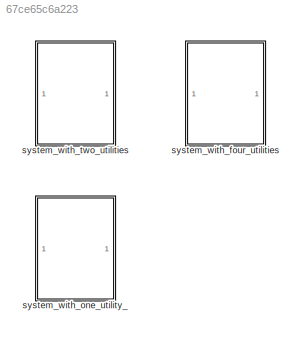
MODEL slx_67ce65c6a223
KIND model
CONFIG AbsTol = auto
CONFIG EnableMultiTasking = off
CONFIG FixedStep = auto
CONFIG MaxStep = tc
CONFIG MinStep = auto
CONFIG RelTol = 1e-3
CONFIG SampleTimeConstraint = Unconstrained
CONFIG SolverName = ode23tb
CONFIG StartTime = 0.0
CONFIG StopTime = 10.0
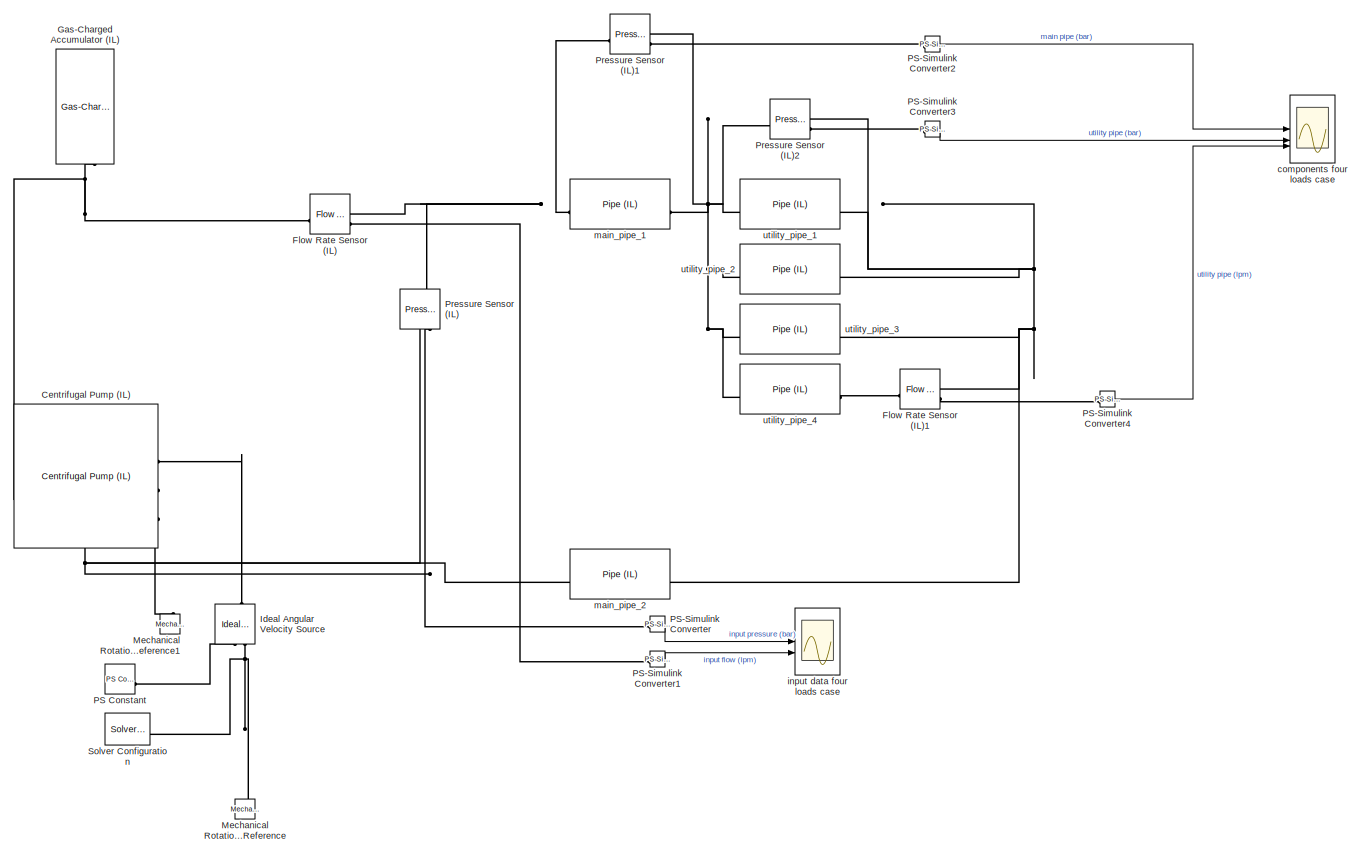
[diagram: system_with_four_utilities - part 1/1, most of the canvas]
BLOCK [SubSystem] system_with_four_utilities
BLOCK [Reference] system_with_four_utilities/Centrifugal Pump (IL)  REF=SimscapeFluids_lib/Isothermal Liquid/Pumps & Motors/Centrifugal Pump
(IL)
  NameLocation = left
  SourceBlock = SimscapeFluids_lib/Isothermal Liquid/Pumps & Motors/Centrifugal Pump\n(IL)
  SourceType = Centrifugal Pump\n(IL)
BLOCK [Reference] system_with_four_utilities/Flow Rate Sensor (IL)  REF=fl_lib/Isothermal Liquid/Sensors/Flow Rate Sensor
(IL)
  SourceBlock = fl_lib/Isothermal Liquid/Sensors/Flow Rate Sensor\n(IL)
  SourceType = Flow Rate Sensor\n(IL)
BLOCK [Reference] system_with_four_utilities/Flow Rate Sensor (IL)1  REF=fl_lib/Isothermal Liquid/Sensors/Flow Rate Sensor
(IL)
  SourceBlock = fl_lib/Isothermal Liquid/Sensors/Flow Rate Sensor\n(IL)
  SourceType = Flow Rate Sensor\n(IL)
BLOCK [Reference] system_with_four_utilities/Gas-Charged Accumulator (IL)  REF=SimscapeFluids_lib/Isothermal Liquid/Tanks & Accumulators/Gas-Charged
Accumulator (IL)
  NameLocation = right
  SourceBlock = SimscapeFluids_lib/Isothermal Liquid/Tanks & Accumulators/Gas-Charged\nAccumulator (IL)
  SourceType = Gas-Charged\nAccumulator (IL)
BLOCK [Reference] system_with_four_utilities/Ideal Angular Velocity Source  REF=fl_lib/Mechanical/Mechanical Sources/Ideal Angular
Velocity Source
  NameLocation = right
  SourceBlock = fl_lib/Mechanical/Mechanical Sources/Ideal Angular\nVelocity Source
  SourceType = Ideal Angular\nVelocity Source
BLOCK [Reference] system_with_four_utilities/Mechanical Rotational Reference  REF=fl_lib/Mechanical/Rotational Elements/Mechanical
Rotational Reference
  NameLocation = right
  SourceBlock = fl_lib/Mechanical/Rotational Elements/Mechanical\nRotational Reference
  SourceType = Mechanical\nRotational Reference
BLOCK [Reference] system_with_four_utilities/Mechanical Rotational Reference1  REF=fl_lib/Mechanical/Rotational Elements/Mechanical
Rotational Reference
  NameLocation = right
  SourceBlock = fl_lib/Mechanical/Rotational Elements/Mechanical\nRotational Reference
  SourceType = Mechanical\nRotational Reference
BLOCK [Reference] system_with_four_utilities/PS Constant  REF=fl_lib/Physical Signals/Sources/PS Constant
  SourceBlock = fl_lib/Physical Signals/Sources/PS Constant
  SourceType = PS Constant
BLOCK [Reference] system_with_four_utilities/PS-Simulink Converter  REF=nesl_utility/PS-Simulink
Converter
  SourceBlock = nesl_utility/PS-Simulink\nConverter
  SourceType = PS-Simulink\nConverter
BLOCK [Reference] system_with_four_utilities/PS-Simulink Converter1  REF=nesl_utility/PS-Simulink
Converter
  SourceBlock = nesl_utility/PS-Simulink\nConverter
  SourceType = PS-Simulink\nConverter
BLOCK [Reference] system_with_four_utilities/PS-Simulink Converter2  REF=nesl_utility/PS-Simulink
Converter
  SourceBlock = nesl_utility/PS-Simulink\nConverter
  SourceType = PS-Simulink\nConverter
BLOCK [Reference] system_with_four_utilities/PS-Simulink Converter3  REF=nesl_utility/PS-Simulink
Converter
  SourceBlock = nesl_utility/PS-Simulink\nConverter
  SourceType = PS-Simulink\nConverter
BLOCK [Reference] system_with_four_utilities/PS-Simulink Converter4  REF=nesl_utility/PS-Simulink
Converter
  SourceBlock = nesl_utility/PS-Simulink\nConverter
  SourceType = PS-Simulink\nConverter
BLOCK [Reference] system_with_four_utilities/Pressure Sensor (IL)  REF=fl_lib/Isothermal Liquid/Sensors/Pressure Sensor (IL)
  NameLocation = left
  SourceBlock = fl_lib/Isothermal Liquid/Sensors/Pressure Sensor (IL)
  SourceType = Pressure Sensor (IL)
BLOCK [Reference] system_with_four_utilities/Pressure Sensor (IL)1  REF=fl_lib/Isothermal Liquid/Sensors/Pressure Sensor (IL)
  SourceBlock = fl_lib/Isothermal Liquid/Sensors/Pressure Sensor (IL)
  SourceType = Pressure Sensor (IL)
BLOCK [Reference] system_with_four_utilities/Pressure Sensor (IL)2  REF=fl_lib/Isothermal Liquid/Sensors/Pressure Sensor (IL)
  SourceBlock = fl_lib/Isothermal Liquid/Sensors/Pressure Sensor (IL)
  SourceType = Pressure Sensor (IL)
BLOCK [Reference] system_with_four_utilities/Solver Configuration  REF=nesl_utility/Solver
Configuration
  SourceBlock = nesl_utility/Solver\nConfiguration
  SourceType = Solver\nConfiguration
BLOCK [Scope] system_with_four_utilities/components four loads case
  ActiveDisplayString = 2
  ActiveDisplayYMaximum = 2.8461616774672711
  ActiveDisplayYMinimum = 0.84616167746727089
  DataLoggingDecimation = 1
  DataLoggingLimitDataPoints = on
  DataLoggingSaveFormat = Array
  Floating = off
  GraphicalSettings = {"Style":{"BackgroundColor":[0.12941176470588237,0.12941176470588237,0.12941176470588237],"AxesColor":[0.07058823529411765,0.07058823529411765,0.07058823529411765],"LabelsColor":[0.8509803921568627,0.8509803921568627,0.8509803921568627],"PreserveColors":false,"Visible":[true,true,true],"LineStyle":["-","-","-"],"LineWidth":[1.5,1.5,1.5],"BarWidth":[0.9,0.9,0.9],"LineColor":["auto","auto","auto"],"...<+2977ch>  <repeated x3 — deduplicated; at blocks: components four loads case, components data two loads case>
  LayoutDimensionsString = [3,1]
  MultipleDisplayCache = [{"MaxYLimMag":0.37036280909614694,"MaxYLimReal":0.37036280909614694,"MinYLimMag":0.1703628090961469,"MinYLimReal":0.1703628090961469,"PlotAsMagnitudePhase":false,"ShowGrid":true,"ShowLegend":true,"Title":"%<SignalLabel>","YLabel":""},{"MaxYLimMag":2.8461616774672711,"MaxYLimReal":2.8461616774672711,"MinYLimMag":0.84616167746727089,"MinYLimReal":0.84616167746727089,"PlotAsMagnitudePhase":false,"Sh...<+301ch>
  NumInputPorts = 3
  ScopeFrameLocation = window
  ShowLegend = on
  WasSavedAsWebScope = on
  WindowPosition = [1257.000000,86.000000,632.000000,618.000000,]
BLOCK [Scope] system_with_four_utilities/input data four loads case
  ActiveDisplayString = 2
  ActiveDisplayYMaximum = 202.62030358776565
  ActiveDisplayYMinimum = 2.6203035877656617
  DataLoggingDecimation = 1
  DataLoggingLimitDataPoints = on
  DataLoggingSaveFormat = Array
  DataLoggingVariableName = ScopeData2
  Floating = off
  GraphicalSettings = {"Style":{"BackgroundColor":[0.12941176470588237,0.12941176470588237,0.12941176470588237],"AxesColor":[0.07058823529411765,0.07058823529411765,0.07058823529411765],"LabelsColor":[0.8509803921568627,0.8509803921568627,0.8509803921568627],"PreserveColors":false,"Visible":[true,true],"LineStyle":["-","-"],"LineWidth":[1.5,1.5],"BarWidth":[0.9,0.9],"LineColor":["auto","auto"],"LineFaceAlpha":[1,1],"Li...<+2519ch>
  LayoutDimensionsString = [2,1]
  MultipleDisplayCache = [{"MaxYLimMag":3.3869624665461786,"MaxYLimReal":3.3869624665461786,"MinYLimMag":1.3869624665461786,"MinYLimReal":1.3869624665461786,"PlotAsMagnitudePhase":false,"ShowGrid":true,"ShowLegend":true,"Title":"%<SignalLabel>","YLabel":""},{"MaxYLimMag":202.62030358776565,"MaxYLimReal":202.62030358776565,"MinYLimMag":2.6203035877656617,"MinYLimReal":2.6203035877656617,"PlotAsMagnitudePhase":false,"ShowGr...<+65ch>
  NumInputPorts = 2
  ScopeFrameLocation = window
  ShowLegend = on
  WasSavedAsWebScope = on
  WindowPosition = [1091.000000,228.000000,632.000000,618.000000,]
BLOCK [Reference] system_with_four_utilities/main_pipe_1  REF=SimscapeFluids_lib/Isothermal Liquid/Pipes & Fittings/Pipe (IL)
  SourceBlock = SimscapeFluids_lib/Isothermal Liquid/Pipes & Fittings/Pipe (IL)
  SourceType = Pipe (IL)
BLOCK [Reference] system_with_four_utilities/main_pipe_2  REF=SimscapeFluids_lib/Isothermal Liquid/Pipes & Fittings/Pipe (IL)
  SourceBlock = SimscapeFluids_lib/Isothermal Liquid/Pipes & Fittings/Pipe (IL)
  SourceType = Pipe (IL)
BLOCK [Reference] system_with_four_utilities/utility_pipe_1  REF=SimscapeFluids_lib/Isothermal Liquid/Pipes & Fittings/Pipe (IL)
  SourceBlock = SimscapeFluids_lib/Isothermal Liquid/Pipes & Fittings/Pipe (IL)
  SourceType = Pipe (IL)
BLOCK [Reference] system_with_four_utilities/utility_pipe_2  REF=SimscapeFluids_lib/Isothermal Liquid/Pipes & Fittings/Pipe (IL)
  SourceBlock = SimscapeFluids_lib/Isothermal Liquid/Pipes & Fittings/Pipe (IL)
  SourceType = Pipe (IL)
BLOCK [Reference] system_with_four_utilities/utility_pipe_3  REF=SimscapeFluids_lib/Isothermal Liquid/Pipes & Fittings/Pipe (IL)
  SourceBlock = SimscapeFluids_lib/Isothermal Liquid/Pipes & Fittings/Pipe (IL)
  SourceType = Pipe (IL)
BLOCK [Reference] system_with_four_utilities/utility_pipe_4  REF=SimscapeFluids_lib/Isothermal Liquid/Pipes & Fittings/Pipe (IL)
  SourceBlock = SimscapeFluids_lib/Isothermal Liquid/Pipes & Fittings/Pipe (IL)
  SourceType = Pipe (IL)
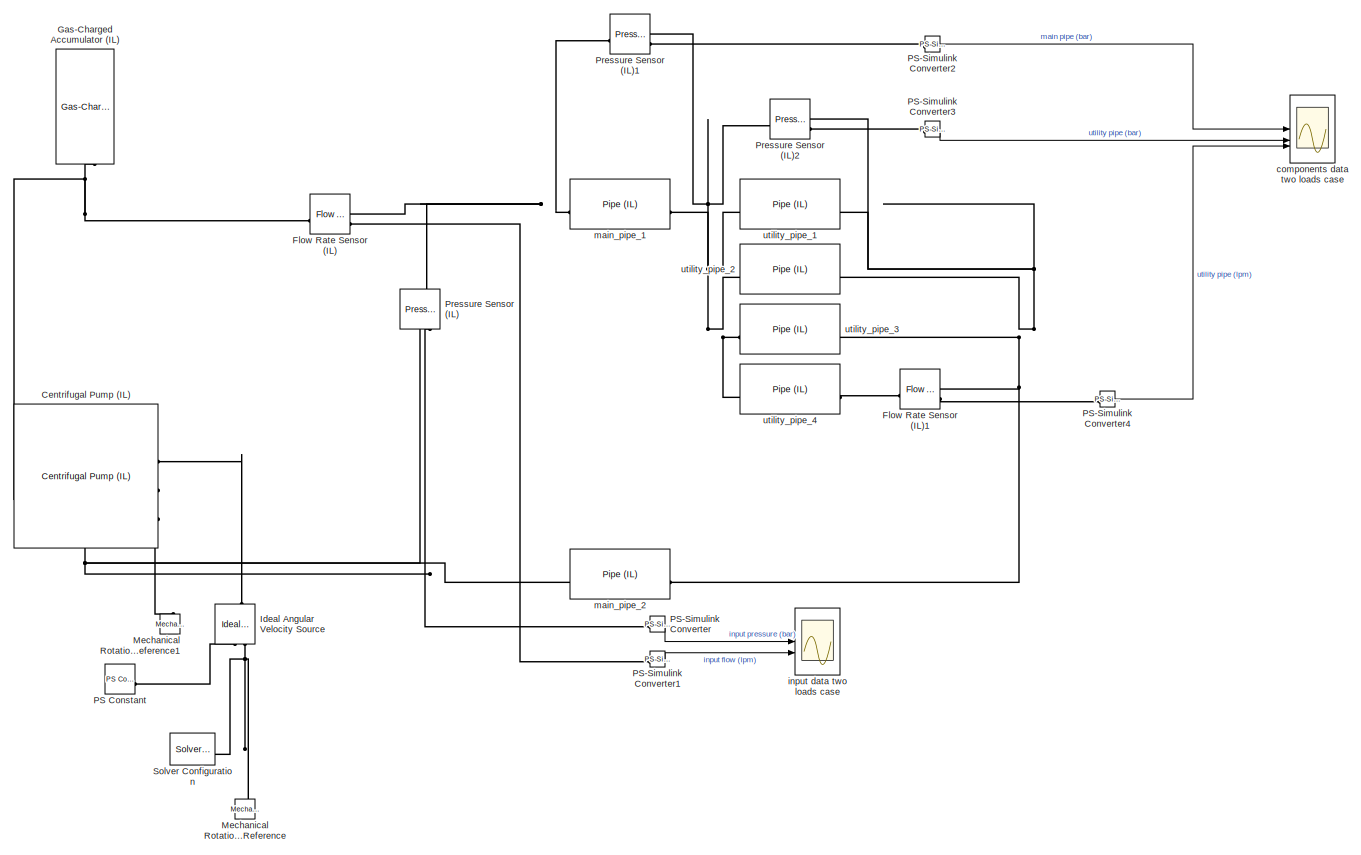
[diagram: system_with_one_utility_ - part 1/1, most of the canvas]
BLOCK [SubSystem] system_with_one_utility_
BLOCK [Reference] system_with_one_utility_/Centrifugal Pump (IL)  REF=SimscapeFluids_lib/Isothermal Liquid/Pumps & Motors/Centrifugal Pump
(IL)
  NameLocation = left
  SourceBlock = SimscapeFluids_lib/Isothermal Liquid/Pumps & Motors/Centrifugal Pump\n(IL)
  SourceType = Centrifugal Pump\n(IL)
BLOCK [Reference] system_with_one_utility_/Flow Rate Sensor (IL)  REF=fl_lib/Isothermal Liquid/Sensors/Flow Rate Sensor
(IL)
  SourceBlock = fl_lib/Isothermal Liquid/Sensors/Flow Rate Sensor\n(IL)
  SourceType = Flow Rate Sensor\n(IL)
BLOCK [Reference] system_with_one_utility_/Flow Rate Sensor (IL)1  REF=fl_lib/Isothermal Liquid/Sensors/Flow Rate Sensor
(IL)
  SourceBlock = fl_lib/Isothermal Liquid/Sensors/Flow Rate Sensor\n(IL)
  SourceType = Flow Rate Sensor\n(IL)
BLOCK [Reference] system_with_one_utility_/Gas-Charged Accumulator (IL)  REF=SimscapeFluids_lib/Isothermal Liquid/Tanks & Accumulators/Gas-Charged
Accumulator (IL)
  NameLocation = right
  SourceBlock = SimscapeFluids_lib/Isothermal Liquid/Tanks & Accumulators/Gas-Charged\nAccumulator (IL)
  SourceType = Gas-Charged\nAccumulator (IL)
BLOCK [Reference] system_with_one_utility_/Ideal Angular Velocity Source  REF=fl_lib/Mechanical/Mechanical Sources/Ideal Angular
Velocity Source
  NameLocation = right
  SourceBlock = fl_lib/Mechanical/Mechanical Sources/Ideal Angular\nVelocity Source
  SourceType = Ideal Angular\nVelocity Source
BLOCK [Reference] system_with_one_utility_/Mechanical Rotational Reference  REF=fl_lib/Mechanical/Rotational Elements/Mechanical
Rotational Reference
  NameLocation = right
  SourceBlock = fl_lib/Mechanical/Rotational Elements/Mechanical\nRotational Reference
  SourceType = Mechanical\nRotational Reference
BLOCK [Reference] system_with_one_utility_/Mechanical Rotational Reference1  REF=fl_lib/Mechanical/Rotational Elements/Mechanical
Rotational Reference
  NameLocation = right
  SourceBlock = fl_lib/Mechanical/Rotational Elements/Mechanical\nRotational Reference
  SourceType = Mechanical\nRotational Reference
BLOCK [Reference] system_with_one_utility_/PS Constant  REF=fl_lib/Physical Signals/Sources/PS Constant
  SourceBlock = fl_lib/Physical Signals/Sources/PS Constant
  SourceType = PS Constant
BLOCK [Reference] system_with_one_utility_/PS-Simulink Converter  REF=nesl_utility/PS-Simulink
Converter
  SourceBlock = nesl_utility/PS-Simulink\nConverter
  SourceType = PS-Simulink\nConverter
BLOCK [Reference] system_with_one_utility_/PS-Simulink Converter1  REF=nesl_utility/PS-Simulink
Converter
  SourceBlock = nesl_utility/PS-Simulink\nConverter
  SourceType = PS-Simulink\nConverter
BLOCK [Reference] system_with_one_utility_/PS-Simulink Converter2  REF=nesl_utility/PS-Simulink
Converter
  SourceBlock = nesl_utility/PS-Simulink\nConverter
  SourceType = PS-Simulink\nConverter
BLOCK [Reference] system_with_one_utility_/PS-Simulink Converter3  REF=nesl_utility/PS-Simulink
Converter
  SourceBlock = nesl_utility/PS-Simulink\nConverter
  SourceType = PS-Simulink\nConverter
BLOCK [Reference] system_with_one_utility_/PS-Simulink Converter4  REF=nesl_utility/PS-Simulink
Converter
  SourceBlock = nesl_utility/PS-Simulink\nConverter
  SourceType = PS-Simulink\nConverter
BLOCK [Reference] system_with_one_utility_/Pressure Sensor (IL)  REF=fl_lib/Isothermal Liquid/Sensors/Pressure Sensor (IL)
  NameLocation = left
  SourceBlock = fl_lib/Isothermal Liquid/Sensors/Pressure Sensor (IL)
  SourceType = Pressure Sensor (IL)
BLOCK [Reference] system_with_one_utility_/Pressure Sensor (IL)1  REF=fl_lib/Isothermal Liquid/Sensors/Pressure Sensor (IL)
  SourceBlock = fl_lib/Isothermal Liquid/Sensors/Pressure Sensor (IL)
  SourceType = Pressure Sensor (IL)
BLOCK [Reference] system_with_one_utility_/Pressure Sensor (IL)2  REF=fl_lib/Isothermal Liquid/Sensors/Pressure Sensor (IL)
  SourceBlock = fl_lib/Isothermal Liquid/Sensors/Pressure Sensor (IL)
  SourceType = Pressure Sensor (IL)
BLOCK [Reference] system_with_one_utility_/Solver Configuration  REF=nesl_utility/Solver
Configuration
  SourceBlock = nesl_utility/Solver\nConfiguration
  SourceType = Solver\nConfiguration
BLOCK [Scope] system_with_one_utility_/components data two loads case
  ActiveDisplayString = 2
  ActiveDisplayYMaximum = 3.8281281568528578
  ActiveDisplayYMinimum = 1.8281281568528578
  DataLoggingDecimation = 1
  DataLoggingLimitDataPoints = on
  DataLoggingSaveFormat = Array
  Floating = off
  LayoutDimensionsString = [3,1]
  MultipleDisplayCache = [{"MaxYLimMag":0.21934082203127347,"MaxYLimReal":0.21934082203127347,"MinYLimMag":0.019340822031273477,"MinYLimReal":0.019340822031273477,"PlotAsMagnitudePhase":false,"ShowGrid":true,"ShowLegend":true,"Title":"%<SignalLabel>","YLabel":""},{"MaxYLimMag":3.8281281568528578,"MaxYLimReal":3.8281281568528578,"MinYLimMag":1.8281281568528578,"MinYLimReal":1.8281281568528578,"PlotAsMagnitudePhase":false,"...<+299ch>
  NumInputPorts = 3
  ScopeFrameLocation = window
  ShowLegend = on
  WasSavedAsWebScope = on
  WindowPosition = [103.000000,93.000000,632.000000,618.000000,]
BLOCK [Scope] system_with_one_utility_/input data two loads case
  ActiveDisplayString = 2
  ActiveDisplayYMaximum = 75.018842618136148
  ActiveDisplayYMinimum = 55.018842618136148
  DataLoggingDecimation = 1
  DataLoggingLimitDataPoints = on
  DataLoggingSaveFormat = Array
  DataLoggingVariableName = ScopeData2
  Floating = off
  GraphicalSettings = {"Style":{"BackgroundColor":[0.12941176470588237,0.12941176470588237,0.12941176470588237],"AxesColor":[0.07058823529411765,0.07058823529411765,0.07058823529411765],"LabelsColor":[0.8509803921568627,0.8509803921568627,0.8509803921568627],"PreserveColors":false,"Visible":[true,true],"LineStyle":["-","-"],"LineWidth":[1.5,1.5],"BarWidth":[0.9,0.9],"LineColor":["auto","auto"],"LineFaceAlpha":[1,1],"Li...<+2509ch>
  LayoutDimensionsString = [2,1]
  MultipleDisplayCache = [{"MaxYLimMag":4.0668597734678329,"MaxYLimReal":4.0668597734678329,"MinYLimMag":2.0668597734678325,"MinYLimReal":2.0668597734678325,"PlotAsMagnitudePhase":false,"ShowGrid":true,"ShowLegend":true,"Title":"%<SignalLabel>","YLabel":""},{"MaxYLimMag":75.018842618136148,"MaxYLimReal":75.018842618136148,"MinYLimMag":55.018842618136148,"MinYLimReal":55.018842618136148,"PlotAsMagnitudePhase":false,"ShowGr...<+65ch>
  NumInputPorts = 2
  ScopeFrameLocation = window
  ShowLegend = on
  WasSavedAsWebScope = on
  WindowPosition = [268.000000,232.000000,632.000000,618.000000,]
BLOCK [Reference] system_with_one_utility_/main_pipe_1  REF=SimscapeFluids_lib/Isothermal Liquid/Pipes & Fittings/Pipe (IL)
  SourceBlock = SimscapeFluids_lib/Isothermal Liquid/Pipes & Fittings/Pipe (IL)
  SourceType = Pipe (IL)
BLOCK [Reference] system_with_one_utility_/main_pipe_2  REF=SimscapeFluids_lib/Isothermal Liquid/Pipes & Fittings/Pipe (IL)
  SourceBlock = SimscapeFluids_lib/Isothermal Liquid/Pipes & Fittings/Pipe (IL)
  SourceType = Pipe (IL)
BLOCK [Reference] system_with_one_utility_/utility_pipe_1  REF=SimscapeFluids_lib/Isothermal Liquid/Pipes & Fittings/Pipe (IL)
  SourceBlock = SimscapeFluids_lib/Isothermal Liquid/Pipes & Fittings/Pipe (IL)
  SourceType = Pipe (IL)
BLOCK [Reference] system_with_one_utility_/utility_pipe_2  REF=SimscapeFluids_lib/Isothermal Liquid/Pipes & Fittings/Pipe (IL)
  Commented = on
  SourceBlock = SimscapeFluids_lib/Isothermal Liquid/Pipes & Fittings/Pipe (IL)
  SourceType = Pipe (IL)
BLOCK [Reference] system_with_one_utility_/utility_pipe_3  REF=SimscapeFluids_lib/Isothermal Liquid/Pipes & Fittings/Pipe (IL)
  Commented = on
  SourceBlock = SimscapeFluids_lib/Isothermal Liquid/Pipes & Fittings/Pipe (IL)
  SourceType = Pipe (IL)
BLOCK [Reference] system_with_one_utility_/utility_pipe_4  REF=SimscapeFluids_lib/Isothermal Liquid/Pipes & Fittings/Pipe (IL)
  SourceBlock = SimscapeFluids_lib/Isothermal Liquid/Pipes & Fittings/Pipe (IL)
  SourceType = Pipe (IL)
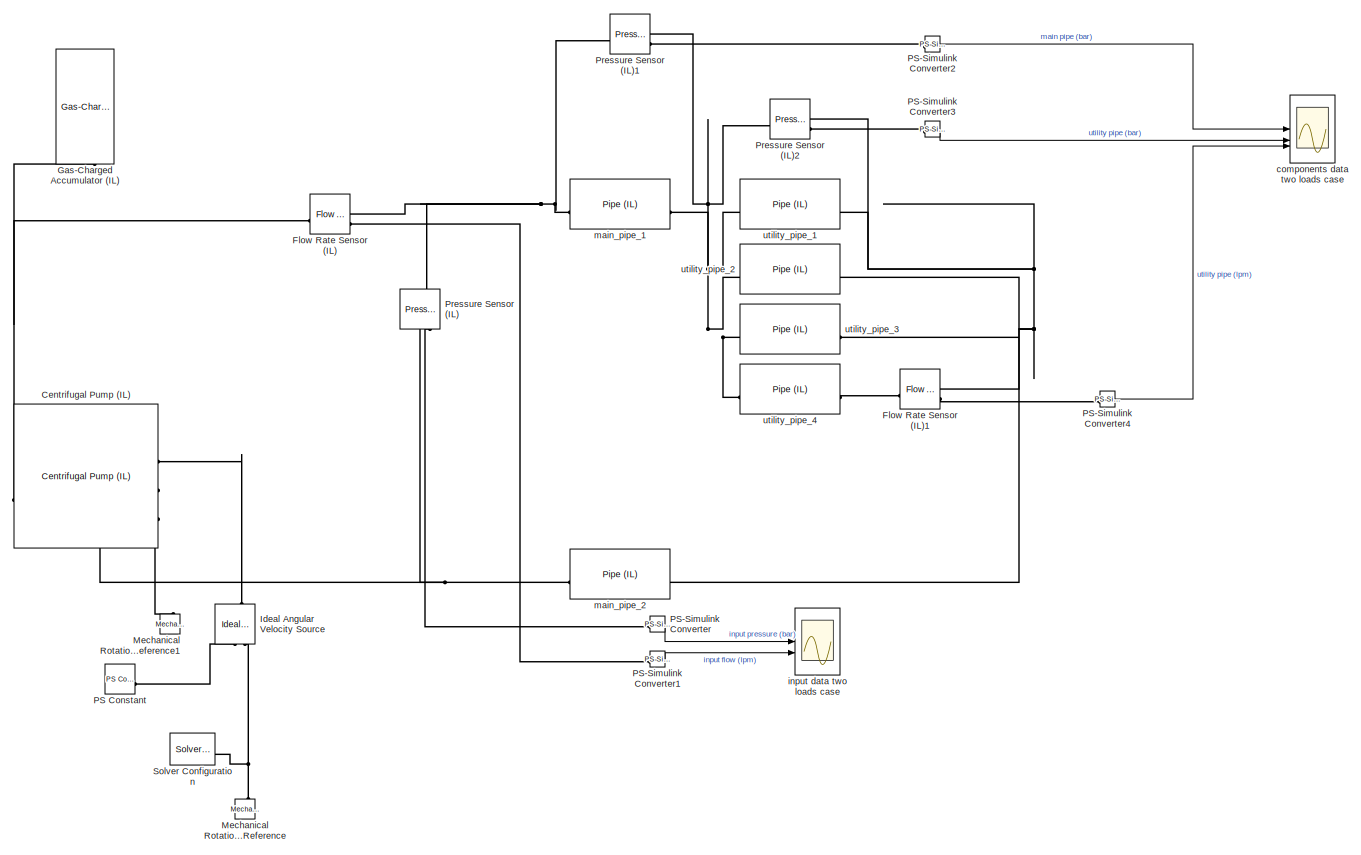
[diagram: system_with_two_utilities - part 1/1, most of the canvas]
BLOCK [SubSystem] system_with_two_utilities
BLOCK [Reference] system_with_two_utilities/Centrifugal Pump (IL)  REF=SimscapeFluids_lib/Isothermal Liquid/Pumps & Motors/Centrifugal Pump
(IL)
  NameLocation = left
  SourceBlock = SimscapeFluids_lib/Isothermal Liquid/Pumps & Motors/Centrifugal Pump\n(IL)
  SourceType = Centrifugal Pump\n(IL)
BLOCK [Reference] system_with_two_utilities/Flow Rate Sensor (IL)  REF=fl_lib/Isothermal Liquid/Sensors/Flow Rate Sensor
(IL)
  SourceBlock = fl_lib/Isothermal Liquid/Sensors/Flow Rate Sensor\n(IL)
  SourceType = Flow Rate Sensor\n(IL)
BLOCK [Reference] system_with_two_utilities/Flow Rate Sensor (IL)1  REF=fl_lib/Isothermal Liquid/Sensors/Flow Rate Sensor
(IL)
  SourceBlock = fl_lib/Isothermal Liquid/Sensors/Flow Rate Sensor\n(IL)
  SourceType = Flow Rate Sensor\n(IL)
BLOCK [Reference] system_with_two_utilities/Gas-Charged Accumulator (IL)  REF=SimscapeFluids_lib/Isothermal Liquid/Tanks & Accumulators/Gas-Charged
Accumulator (IL)
  NameLocation = right
  SourceBlock = SimscapeFluids_lib/Isothermal Liquid/Tanks & Accumulators/Gas-Charged\nAccumulator (IL)
  SourceType = Gas-Charged\nAccumulator (IL)
BLOCK [Reference] system_with_two_utilities/Ideal Angular Velocity Source  REF=fl_lib/Mechanical/Mechanical Sources/Ideal Angular
Velocity Source
  NameLocation = right
  SourceBlock = fl_lib/Mechanical/Mechanical Sources/Ideal Angular\nVelocity Source
  SourceType = Ideal Angular\nVelocity Source
BLOCK [Reference] system_with_two_utilities/Mechanical Rotational Reference  REF=fl_lib/Mechanical/Rotational Elements/Mechanical
Rotational Reference
  NameLocation = right
  SourceBlock = fl_lib/Mechanical/Rotational Elements/Mechanical\nRotational Reference
  SourceType = Mechanical\nRotational Reference
BLOCK [Reference] system_with_two_utilities/Mechanical Rotational Reference1  REF=fl_lib/Mechanical/Rotational Elements/Mechanical
Rotational Reference
  NameLocation = right
  SourceBlock = fl_lib/Mechanical/Rotational Elements/Mechanical\nRotational Reference
  SourceType = Mechanical\nRotational Reference
BLOCK [Reference] system_with_two_utilities/PS Constant  REF=fl_lib/Physical Signals/Sources/PS Constant
  SourceBlock = fl_lib/Physical Signals/Sources/PS Constant
  SourceType = PS Constant
BLOCK [Reference] system_with_two_utilities/PS-Simulink Converter  REF=nesl_utility/PS-Simulink
Converter
  SourceBlock = nesl_utility/PS-Simulink\nConverter
  SourceType = PS-Simulink\nConverter
BLOCK [Reference] system_with_two_utilities/PS-Simulink Converter1  REF=nesl_utility/PS-Simulink
Converter
  SourceBlock = nesl_utility/PS-Simulink\nConverter
  SourceType = PS-Simulink\nConverter
BLOCK [Reference] system_with_two_utilities/PS-Simulink Converter2  REF=nesl_utility/PS-Simulink
Converter
  SourceBlock = nesl_utility/PS-Simulink\nConverter
  SourceType = PS-Simulink\nConverter
BLOCK [Reference] system_with_two_utilities/PS-Simulink Converter3  REF=nesl_utility/PS-Simulink
Converter
  SourceBlock = nesl_utility/PS-Simulink\nConverter
  SourceType = PS-Simulink\nConverter
BLOCK [Reference] system_with_two_utilities/PS-Simulink Converter4  REF=nesl_utility/PS-Simulink
Converter
  SourceBlock = nesl_utility/PS-Simulink\nConverter
  SourceType = PS-Simulink\nConverter
BLOCK [Reference] system_with_two_utilities/Pressure Sensor (IL)  REF=fl_lib/Isothermal Liquid/Sensors/Pressure Sensor (IL)
  NameLocation = left
  SourceBlock = fl_lib/Isothermal Liquid/Sensors/Pressure Sensor (IL)
  SourceType = Pressure Sensor (IL)
BLOCK [Reference] system_with_two_utilities/Pressure Sensor (IL)1  REF=fl_lib/Isothermal Liquid/Sensors/Pressure Sensor (IL)
  SourceBlock = fl_lib/Isothermal Liquid/Sensors/Pressure Sensor (IL)
  SourceType = Pressure Sensor (IL)
BLOCK [Reference] system_with_two_utilities/Pressure Sensor (IL)2  REF=fl_lib/Isothermal Liquid/Sensors/Pressure Sensor (IL)
  SourceBlock = fl_lib/Isothermal Liquid/Sensors/Pressure Sensor (IL)
  SourceType = Pressure Sensor (IL)
BLOCK [Reference] system_with_two_utilities/Solver Configuration  REF=nesl_utility/Solver
Configuration
  SourceBlock = nesl_utility/Solver\nConfiguration
  SourceType = Solver\nConfiguration
BLOCK [Scope] system_with_two_utilities/components data two loads case
  ActiveDisplayString = 2
  ActiveDisplayYMaximum = 3.8281281568528578
  ActiveDisplayYMinimum = 1.8281281568528578
  DataLoggingDecimation = 1
  DataLoggingLimitDataPoints = on
  DataLoggingSaveFormat = Array
  Floating = off
  LayoutDimensionsString = [3,1]
  MultipleDisplayCache = [{"MaxYLimMag":0.21934082203127347,"MaxYLimReal":0.21934082203127347,"MinYLimMag":0.019340822031273477,"MinYLimReal":0.019340822031273477,"PlotAsMagnitudePhase":false,"ShowGrid":true,"ShowLegend":true,"Title":"%<SignalLabel>","YLabel":""},{"MaxYLimMag":3.8281281568528578,"MaxYLimReal":3.8281281568528578,"MinYLimMag":1.8281281568528578,"MinYLimReal":1.8281281568528578,"PlotAsMagnitudePhase":false,"...<+299ch>
  NumInputPorts = 3
  ScopeFrameLocation = window
  ShowLegend = on
  WasSavedAsWebScope = on
  WindowPosition = [103.000000,93.000000,632.000000,618.000000,]
BLOCK [Scope] system_with_two_utilities/input data two loads case
  ActiveDisplayString = 2
  ActiveDisplayYMaximum = 75.018842618136148
  ActiveDisplayYMinimum = 55.018842618136148
  DataLoggingDecimation = 1
  DataLoggingLimitDataPoints = on
  DataLoggingSaveFormat = Array
  DataLoggingVariableName = ScopeData2
  Floating = off
  GraphicalSettings = {"Style":{"BackgroundColor":[0.12941176470588237,0.12941176470588237,0.12941176470588237],"AxesColor":[0.07058823529411765,0.07058823529411765,0.07058823529411765],"LabelsColor":[0.8509803921568627,0.8509803921568627,0.8509803921568627],"PreserveColors":false,"Visible":[true,true],"LineStyle":["-","-"],"LineWidth":[1.5,1.5],"BarWidth":[0.9,0.9],"LineColor":["auto","auto"],"LineFaceAlpha":[1,1],"Li...<+2509ch>
  LayoutDimensionsString = [2,1]
  MultipleDisplayCache = [{"MaxYLimMag":4.0668597734678329,"MaxYLimReal":4.0668597734678329,"MinYLimMag":2.0668597734678325,"MinYLimReal":2.0668597734678325,"PlotAsMagnitudePhase":false,"ShowGrid":true,"ShowLegend":true,"Title":"%<SignalLabel>","YLabel":""},{"MaxYLimMag":75.018842618136148,"MaxYLimReal":75.018842618136148,"MinYLimMag":55.018842618136148,"MinYLimReal":55.018842618136148,"PlotAsMagnitudePhase":false,"ShowGr...<+65ch>
  NumInputPorts = 2
  ScopeFrameLocation = window
  ShowLegend = on
  WasSavedAsWebScope = on
  WindowPosition = [268.000000,232.000000,632.000000,618.000000,]
BLOCK [Reference] system_with_two_utilities/main_pipe_1  REF=SimscapeFluids_lib/Isothermal Liquid/Pipes & Fittings/Pipe (IL)
  SourceBlock = SimscapeFluids_lib/Isothermal Liquid/Pipes & Fittings/Pipe (IL)
  SourceType = Pipe (IL)
BLOCK [Reference] system_with_two_utilities/main_pipe_2  REF=SimscapeFluids_lib/Isothermal Liquid/Pipes & Fittings/Pipe (IL)
  SourceBlock = SimscapeFluids_lib/Isothermal Liquid/Pipes & Fittings/Pipe (IL)
  SourceType = Pipe (IL)
BLOCK [Reference] system_with_two_utilities/utility_pipe_1  REF=SimscapeFluids_lib/Isothermal Liquid/Pipes & Fittings/Pipe (IL)
  SourceBlock = SimscapeFluids_lib/Isothermal Liquid/Pipes & Fittings/Pipe (IL)
  SourceType = Pipe (IL)
BLOCK [Reference] system_with_two_utilities/utility_pipe_2  REF=SimscapeFluids_lib/Isothermal Liquid/Pipes & Fittings/Pipe (IL)
  Commented = on
  SourceBlock = SimscapeFluids_lib/Isothermal Liquid/Pipes & Fittings/Pipe (IL)
  SourceType = Pipe (IL)
BLOCK [Reference] system_with_two_utilities/utility_pipe_3  REF=SimscapeFluids_lib/Isothermal Liquid/Pipes & Fittings/Pipe (IL)
  Commented = on
  SourceBlock = SimscapeFluids_lib/Isothermal Liquid/Pipes & Fittings/Pipe (IL)
  SourceType = Pipe (IL)
BLOCK [Reference] system_with_two_utilities/utility_pipe_4  REF=SimscapeFluids_lib/Isothermal Liquid/Pipes & Fittings/Pipe (IL)
  SourceBlock = SimscapeFluids_lib/Isothermal Liquid/Pipes & Fittings/Pipe (IL)
  SourceType = Pipe (IL)
LINE system_with_four_utilities/PS-Simulink Converter1:1 -> system_with_four_utilities/input data four loads case:2
LINE system_with_four_utilities/PS-Simulink Converter2:1 -> system_with_four_utilities/components four loads case:1
LINE system_with_four_utilities/PS-Simulink Converter3:1 -> system_with_four_utilities/components four loads case:2
LINE system_with_four_utilities/PS-Simulink Converter4:1 -> system_with_four_utilities/components four loads case:3
LINE system_with_four_utilities/PS-Simulink Converter:1 -> system_with_four_utilities/input data four loads case:1
LINE system_with_one_utility_/PS-Simulink Converter1:1 -> system_with_one_utility_/input data two loads case:2
LINE system_with_one_utility_/PS-Simulink Converter2:1 -> system_with_one_utility_/components data two loads case:1
LINE system_with_one_utility_/PS-Simulink Converter3:1 -> system_with_one_utility_/components data two loads case:2
LINE system_with_one_utility_/PS-Simulink Converter4:1 -> system_with_one_utility_/components data two loads case:3
LINE system_with_one_utility_/PS-Simulink Converter:1 -> system_with_one_utility_/input data two loads case:1
LINE system_with_two_utilities/PS-Simulink Converter1:1 -> system_with_two_utilities/input data two loads case:2
LINE system_with_two_utilities/PS-Simulink Converter2:1 -> system_with_two_utilities/components data two loads case:1
LINE system_with_two_utilities/PS-Simulink Converter3:1 -> system_with_two_utilities/components data two loads case:2
LINE system_with_two_utilities/PS-Simulink Converter4:1 -> system_with_two_utilities/components data two loads case:3
LINE system_with_two_utilities/PS-Simulink Converter:1 -> system_with_two_utilities/input data two loads case:1
PNET net1: system_with_four_utilities/Centrifugal Pump (IL):LConn1 -- system_with_four_utilities/Flow Rate Sensor (IL):LConn1 -- system_with_four_utilities/Gas-Charged Accumulator (IL):RConn1
PLINE system_with_four_utilities/Centrifugal Pump (IL):RConn1 -- system_with_four_utilities/Ideal Angular Velocity Source:LConn1
PLINE system_with_four_utilities/Centrifugal Pump (IL):RConn2 -- system_with_four_utilities/Mechanical Rotational Reference1:LConn1
PNET net2: system_with_four_utilities/Centrifugal Pump (IL):RConn3 -- system_with_four_utilities/Pressure Sensor (IL):RConn1 -- system_with_four_utilities/main_pipe_2:LConn1
PLINE system_with_four_utilities/Flow Rate Sensor (IL)1:LConn1 -- system_with_four_utilities/utility_pipe_4:RConn1
PNET net3: system_with_four_utilities/Flow Rate Sensor (IL)1:RConn1 -- system_with_four_utilities/Pressure Sensor (IL)2:RConn1 -- system_with_four_utilities/main_pipe_2:RConn1 -- system_with_four_utilities/utility_pipe_1:RConn1 -- system_with_four_utilities/utility_pipe_2:RConn1 -- system_with_four_utilities/utility_pipe_3:RConn1
PLINE system_with_four_utilities/Flow Rate Sensor (IL)1:RConn2 -- system_with_four_utilities/PS-Simulink Converter4:LConn1
PNET net4: system_with_four_utilities/Flow Rate Sensor (IL):RConn1 -- system_with_four_utilities/Pressure Sensor (IL)1:LConn1 -- system_with_four_utilities/Pressure Sensor (IL):LConn1 -- system_with_four_utilities/main_pipe_1:LConn1
PLINE system_with_four_utilities/Flow Rate Sensor (IL):RConn2 -- system_with_four_utilities/PS-Simulink Converter1:LConn1
PLINE system_with_four_utilities/Ideal Angular Velocity Source:RConn1 -- system_with_four_utilities/PS Constant:RConn1
PNET net5: system_with_four_utilities/Ideal Angular Velocity Source:RConn2 -- system_with_four_utilities/Mechanical Rotational Reference:LConn1 -- system_with_four_utilities/Solver Configuration:RConn1
PLINE system_with_four_utilities/PS-Simulink Converter2:LConn1 -- system_with_four_utilities/Pressure Sensor (IL)1:RConn2
PLINE system_with_four_utilities/PS-Simulink Converter3:LConn1 -- system_with_four_utilities/Pressure Sensor (IL)2:RConn2
PLINE system_with_four_utilities/PS-Simulink Converter:LConn1 -- system_with_four_utilities/Pressure Sensor (IL):RConn2
PNET net6: system_with_four_utilities/Pressure Sensor (IL)1:RConn1 -- system_with_four_utilities/Pressure Sensor (IL)2:LConn1 -- system_with_four_utilities/main_pipe_1:RConn1 -- system_with_four_utilities/utility_pipe_1:LConn1 -- system_with_four_utilities/utility_pipe_2:LConn1 -- system_with_four_utilities/utility_pipe_3:LConn1 -- system_with_four_utilities/utility_pipe_4:LConn1
PNET net7: system_with_one_utility_/Centrifugal Pump (IL):LConn1 -- system_with_one_utility_/Flow Rate Sensor (IL):LConn1 -- system_with_one_utility_/Gas-Charged Accumulator (IL):RConn1
PLINE system_with_one_utility_/Centrifugal Pump (IL):RConn1 -- system_with_one_utility_/Ideal Angular Velocity Source:LConn1
PLINE system_with_one_utility_/Centrifugal Pump (IL):RConn2 -- system_with_one_utility_/Mechanical Rotational Reference1:LConn1
PNET net8: system_with_one_utility_/Centrifugal Pump (IL):RConn3 -- system_with_one_utility_/Pressure Sensor (IL):RConn1 -- system_with_one_utility_/main_pipe_2:LConn1
PLINE system_with_one_utility_/Flow Rate Sensor (IL)1:LConn1 -- system_with_one_utility_/utility_pipe_4:RConn1
PNET net9: system_with_one_utility_/Flow Rate Sensor (IL)1:RConn1 -- system_with_one_utility_/Pressure Sensor (IL)2:RConn1 -- system_with_one_utility_/main_pipe_2:RConn1 -- system_with_one_utility_/utility_pipe_1:RConn1 -- system_with_one_utility_/utility_pipe_2:RConn1 -- system_with_one_utility_/utility_pipe_3:RConn1
PLINE system_with_one_utility_/Flow Rate Sensor (IL)1:RConn2 -- system_with_one_utility_/PS-Simulink Converter4:LConn1
PNET net10: system_with_one_utility_/Flow Rate Sensor (IL):RConn1 -- system_with_one_utility_/Pressure Sensor (IL)1:LConn1 -- system_with_one_utility_/Pressure Sensor (IL):LConn1 -- system_with_one_utility_/main_pipe_1:LConn1
PLINE system_with_one_utility_/Flow Rate Sensor (IL):RConn2 -- system_with_one_utility_/PS-Simulink Converter1:LConn1
PLINE system_with_one_utility_/Ideal Angular Velocity Source:RConn1 -- system_with_one_utility_/PS Constant:RConn1
PNET net11: system_with_one_utility_/Ideal Angular Velocity Source:RConn2 -- system_with_one_utility_/Mechanical Rotational Reference:LConn1 -- system_with_one_utility_/Solver Configuration:RConn1
PLINE system_with_one_utility_/PS-Simulink Converter2:LConn1 -- system_with_one_utility_/Pressure Sensor (IL)1:RConn2
PLINE system_with_one_utility_/PS-Simulink Converter3:LConn1 -- system_with_one_utility_/Pressure Sensor (IL)2:RConn2
PLINE system_with_one_utility_/PS-Simulink Converter:LConn1 -- system_with_one_utility_/Pressure Sensor (IL):RConn2
PNET net12: system_with_one_utility_/Pressure Sensor (IL)1:RConn1 -- system_with_one_utility_/Pressure Sensor (IL)2:LConn1 -- system_with_one_utility_/main_pipe_1:RConn1 -- system_with_one_utility_/utility_pipe_1:LConn1 -- system_with_one_utility_/utility_pipe_2:LConn1 -- system_with_one_utility_/utility_pipe_3:LConn1 -- system_with_one_utility_/utility_pipe_4:LConn1
PNET net13: system_with_two_utilities/Centrifugal Pump (IL):LConn1 -- system_with_two_utilities/Flow Rate Sensor (IL):LConn1 -- system_with_two_utilities/Gas-Charged Accumulator (IL):RConn1
PLINE system_with_two_utilities/Centrifugal Pump (IL):RConn1 -- system_with_two_utilities/Ideal Angular Velocity Source:LConn1
PLINE system_with_two_utilities/Centrifugal Pump (IL):RConn2 -- system_with_two_utilities/Mechanical Rotational Reference1:LConn1
PNET net14: system_with_two_utilities/Centrifugal Pump (IL):RConn3 -- system_with_two_utilities/Pressure Sensor (IL):RConn1 -- system_with_two_utilities/main_pipe_2:LConn1
PLINE system_with_two_utilities/Flow Rate Sensor (IL)1:LConn1 -- system_with_two_utilities/utility_pipe_4:RConn1
PNET net15: system_with_two_utilities/Flow Rate Sensor (IL)1:RConn1 -- system_with_two_utilities/Pressure Sensor (IL)2:RConn1 -- system_with_two_utilities/main_pipe_2:RConn1 -- system_with_two_utilities/utility_pipe_1:RConn1 -- system_with_two_utilities/utility_pipe_2:RConn1 -- system_with_two_utilities/utility_pipe_3:RConn1
PLINE system_with_two_utilities/Flow Rate Sensor (IL)1:RConn2 -- system_with_two_utilities/PS-Simulink Converter4:LConn1
PNET net16: system_with_two_utilities/Flow Rate Sensor (IL):RConn1 -- system_with_two_utilities/Pressure Sensor (IL)1:LConn1 -- system_with_two_utilities/Pressure Sensor (IL):LConn1 -- system_with_two_utilities/main_pipe_1:LConn1
PLINE system_with_two_utilities/Flow Rate Sensor (IL):RConn2 -- system_with_two_utilities/PS-Simulink Converter1:LConn1
PLINE system_with_two_utilities/Ideal Angular Velocity Source:RConn1 -- system_with_two_utilities/PS Constant:RConn1
PNET net17: system_with_two_utilities/Ideal Angular Velocity Source:RConn2 -- system_with_two_utilities/Mechanical Rotational Reference:LConn1 -- system_with_two_utilities/Solver Configuration:RConn1
PLINE system_with_two_utilities/PS-Simulink Converter2:LConn1 -- system_with_two_utilities/Pressure Sensor (IL)1:RConn2
PLINE system_with_two_utilities/PS-Simulink Converter3:LConn1 -- system_with_two_utilities/Pressure Sensor (IL)2:RConn2
PLINE system_with_two_utilities/PS-Simulink Converter:LConn1 -- system_with_two_utilities/Pressure Sensor (IL):RConn2
PNET net18: system_with_two_utilities/Pressure Sensor (IL)1:RConn1 -- system_with_two_utilities/Pressure Sensor (IL)2:LConn1 -- system_with_two_utilities/main_pipe_1:RConn1 -- system_with_two_utilities/utility_pipe_1:LConn1 -- system_with_two_utilities/utility_pipe_2:LConn1 -- system_with_two_utilities/utility_pipe_3:LConn1 -- system_with_two_utilities/utility_pipe_4:LConn1
note: PNET lines group multi-terminal physical nets as a canonical sorted terminal list (undirected conserving connections); 2-terminal nets keep the pairwise PLINE form
